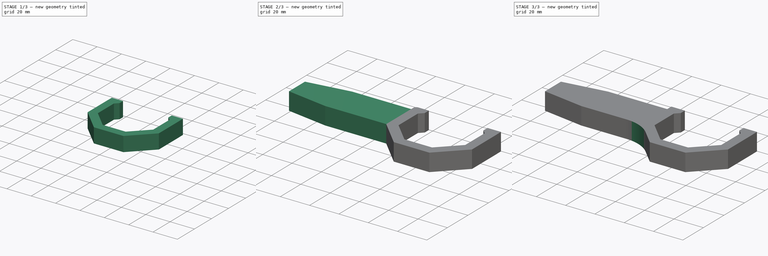
[diagram: build sequence overview — one tinted view per stage of 3, left to right]
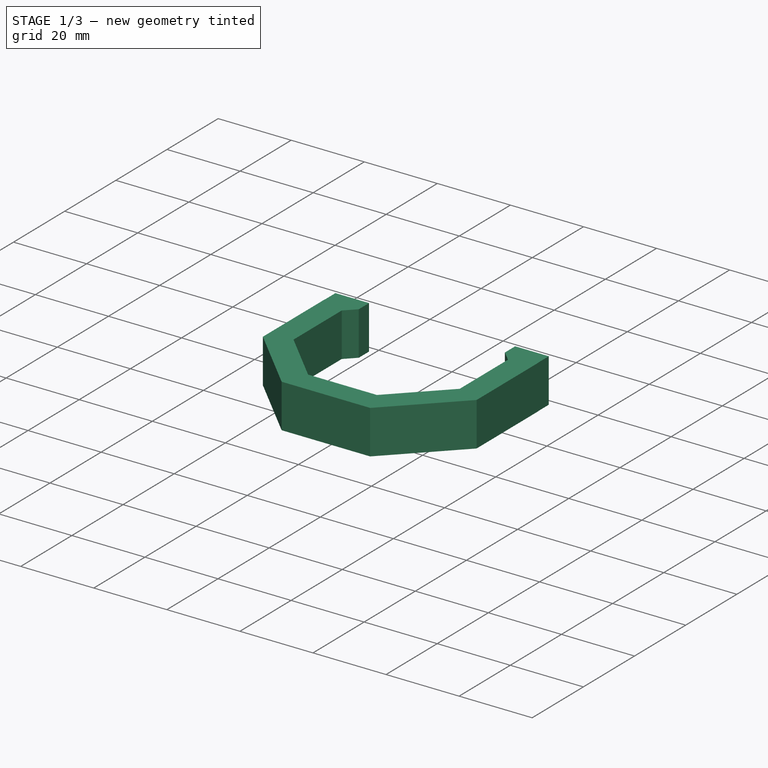
[diagram: stage 1 of 3 — iso view after this stage's code; geometry added in this stage tinted green]
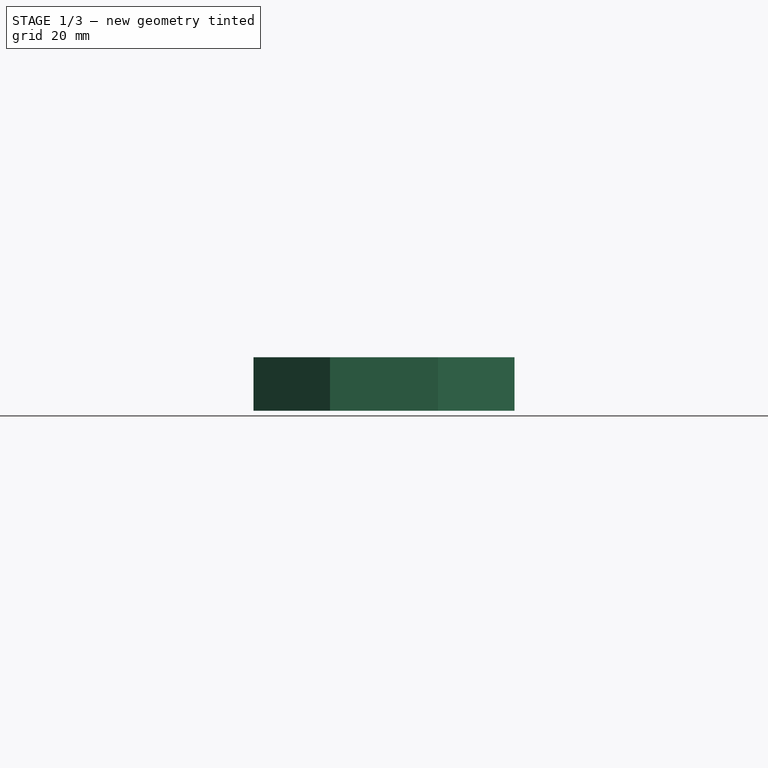
[diagram: stage 1 of 3 — front view after this stage's code; geometry added in this stage tinted green]
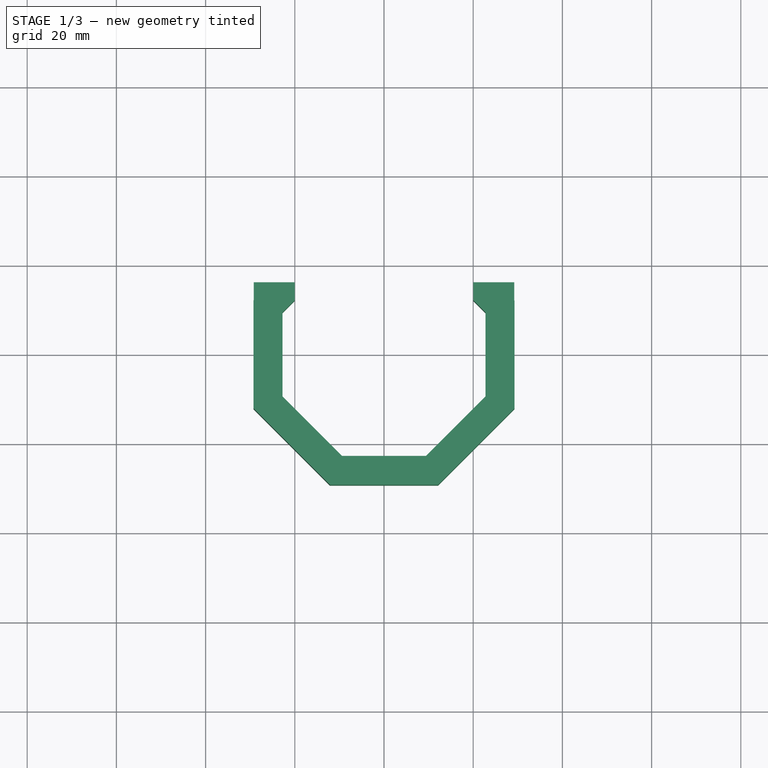
[diagram: stage 1 of 3 — top view after this stage's code; geometry added in this stage tinted green]
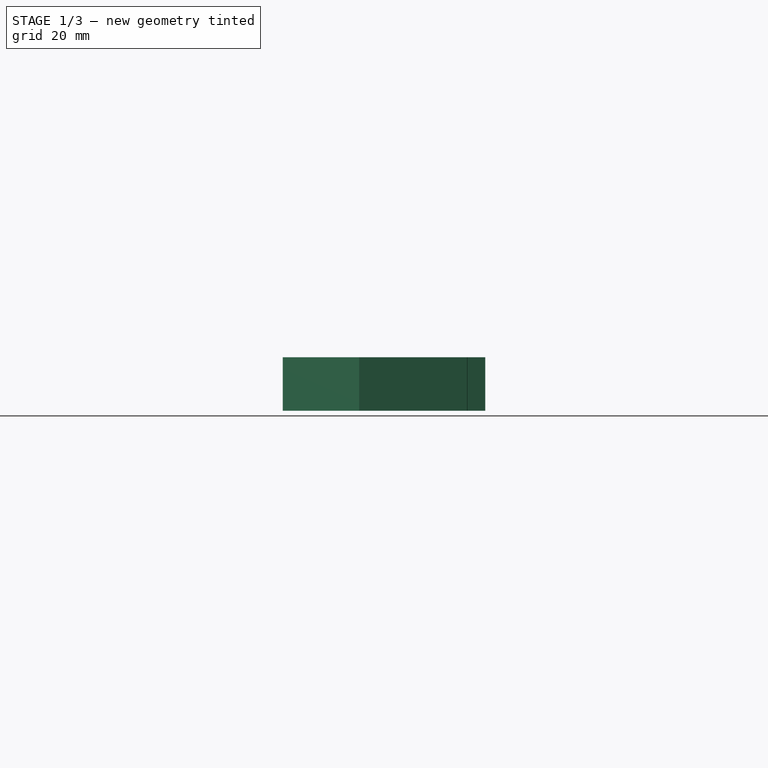
[diagram: stage 1 of 3 — right view after this stage's code; geometry added in this stage tinted green]
FCSTD DOCUMENT  (FreeCAD 1.0R39285 (Git))
Label: Ключ 34 угловой
License: All rights reserved
LicenseURL: https://en.wikipedia.org/wiki/All_rights_reserved
objects: PartDesign::Fillet×4, Sketcher::SketchObject×3, PartDesign::Pad×3, PartDesign::Thickness×1, PartDesign::Body×1
note: 31 computed .brp shape members not serialized (recipe doc carries the construction recipe); baked Part::Feature solids carry a one-line shape summary decoded from their .brp

FEATURE [Sketcher::SketchObject] Sketch
  ArcFitTolerance = 1e-06
  AttachmentSupport = -> [XY_Plane]
  FullyConstrained = true
  MakeInternals = false
  MapMode = 5
  sketch-geometry (12):
    g0: LineSegment StartX=-22.75 StartY=9.42336 StartZ=0 EndX=-22.75 EndY=-9.42336 EndZ=0
    g1: LineSegment StartX=-22.75 StartY=-9.42336 StartZ=0 EndX=-9.42336 EndY=-22.75 EndZ=0
    g2: LineSegment StartX=-9.42336 StartY=-22.75 StartZ=0 EndX=9.42336 EndY=-22.75 EndZ=0
    g3: LineSegment StartX=9.42336 StartY=-22.75 StartZ=0 EndX=22.75 EndY=-9.42336 EndZ=0
    g4: LineSegment StartX=22.75 StartY=-9.42336 StartZ=0 EndX=22.75 EndY=9.42336 EndZ=0
    g5: LineSegment [constr] StartX=22.75 StartY=9.42336 StartZ=0 EndX=9.42336 EndY=22.75 EndZ=0
    g6: LineSegment [constr] StartX=9.42336 StartY=22.75 StartZ=0 EndX=-9.42336 EndY=22.75 EndZ=0
    g7: LineSegment [constr] StartX=-9.42336 StartY=22.75 StartZ=0 EndX=-22.75 EndY=9.42336 EndZ=0
    g8: Circle [constr] CenterX=0 CenterY=0 CenterZ=0 NormalX=0 NormalY=0 NormalZ=1 AngleXU=0 Radius=24.6244
    g9: LineSegment StartX=-22.75 StartY=9.42336 StartZ=0 EndX=-20 EndY=12.1734 EndZ=0
    g10: LineSegment StartX=22.75 StartY=9.42336 StartZ=0 EndX=20 EndY=12.1734 EndZ=0
    g11: LineSegment StartX=-20 StartY=12.1734 StartZ=0 EndX=20 EndY=12.1734 EndZ=0
  constraints (28):
    c: Coincident(g0,g1)
    c: Coincident(g1,g2)
    c: Coincident(g2,g3)
    c: Coincident(g3,g4)
    c: Coincident(g4,g5)
    c: Coincident(g5,g6)
    c: Coincident(g6,g7)
    c: Coincident(g7,g0)
    c: Equal(g0, g1-g7) x7
    c: PointOnObject(g0,g8)
    c: PointOnObject(g1,g8)
    c: PointOnObject(g2,g8)
    c: PointOnObject(g3,g8)
    c: PointOnObject(g4,g8)
    c: PointOnObject(g5,g8)
    c: PointOnObject(g6,g8)
    c: PointOnObject(g7,g8)
    c: Coincident(g8,g-1)
    c: Horizontal(g6)
    c: Coincident(g9,g0)
    c: Coincident(g10,g4)
    c: Distance(g4,g0) = 45.5
    c: Coincident(g11,g9)
    c: Coincident(g11,g10)
    c: DistanceX(g11,g11) = 40
    c: PointOnObject(g9,g7)
    c: PointOnObject(g10,g5)
    c: Horizontal(g11)
FEATURE [PartDesign::Pad] Pad
  Direction = (0,0,1)
  Length = 12
  Length2 = 10
  Profile = -> Sketch
  ReferenceAxis = -> Sketch [N_Axis]
  Refine = true
  Suppressed = false
  Type = 0
FEATURE [PartDesign::Thickness] Thickness
  Base = -> Pad [Face9,Face7,Face10]
  BaseFeature = -> Pad
  Intersection = false
  Join = 1
  Mode = 0
  Refine = true
  SupportTransform = false
  Suppressed = false
  Value = 6.5
FEATURE [Sketcher::SketchObject] Sketch001
  ArcFitTolerance = 1e-06
  AttachmentSupport = -> [Thickness]
  ExternalGeometry = -> [Thickness]
  FullyConstrained = true
  MakeInternals = false
  MapMode = 5
  Placement = pos=(0,0,12) rot=(0,0,1;0rad)
  sketch-geometry (8):
    g0: LineSegment StartX=-29.1924 StartY=16.1734 StartZ=0 EndX=-29.1924 EndY=12.1734 EndZ=0
    g1: LineSegment StartX=-29.1924 StartY=12.1734 StartZ=0 EndX=-20 EndY=12.1734 EndZ=0
    g2: LineSegment StartX=-20 StartY=12.1734 StartZ=0 EndX=-20 EndY=16.1734 EndZ=0
    g3: LineSegment StartX=-20 StartY=16.1734 StartZ=0 EndX=-29.1924 EndY=16.1734 EndZ=0
    g4: LineSegment StartX=20 StartY=16.1734 StartZ=0 EndX=20 EndY=12.1734 EndZ=0
    g5: LineSegment StartX=20 StartY=12.1734 StartZ=0 EndX=29.1924 EndY=12.1734 EndZ=0
    g6: LineSegment StartX=29.1924 StartY=12.1734 StartZ=0 EndX=29.1924 EndY=16.1734 EndZ=0
    g7: LineSegment StartX=29.1924 StartY=16.1734 StartZ=0 EndX=20 EndY=16.1734 EndZ=0
  constraints (20):
    c: Coincident(g0,g1)
    c: Coincident(g1,g2)
    c: Coincident(g2,g3)
    c: Coincident(g3,g0)
    c: Vertical(g0)
    c: Vertical(g2)
    c: Horizontal(g3)
    c: Coincident(g4,g5)
    c: Coincident(g5,g6)
    c: Coincident(g6,g7)
    c: Coincident(g7,g4)
    c: Vertical(g4)
    c: Vertical(g6)
    c: Horizontal(g7)
    c: DistanceY(g4,g4) = 4
    c: Coincident(g4,g-4)
    c: Coincident(g1,g-3)
    c: Coincident(g0,g-3)
    c: Equal(g4,g2)
    c: Coincident(g5,g-4)
FEATURE [PartDesign::Pad] Pad001
  BaseFeature = -> Thickness
  Direction = (0,0,1)
  Length = 10
  Length2 = 10
  Profile = -> Sketch001
  ReferenceAxis = -> Sketch001 [N_Axis]
  Refine = true
  Reversed = true
  Suppressed = false
  Type = 3
  UpToFace = -> Thickness [Face8]
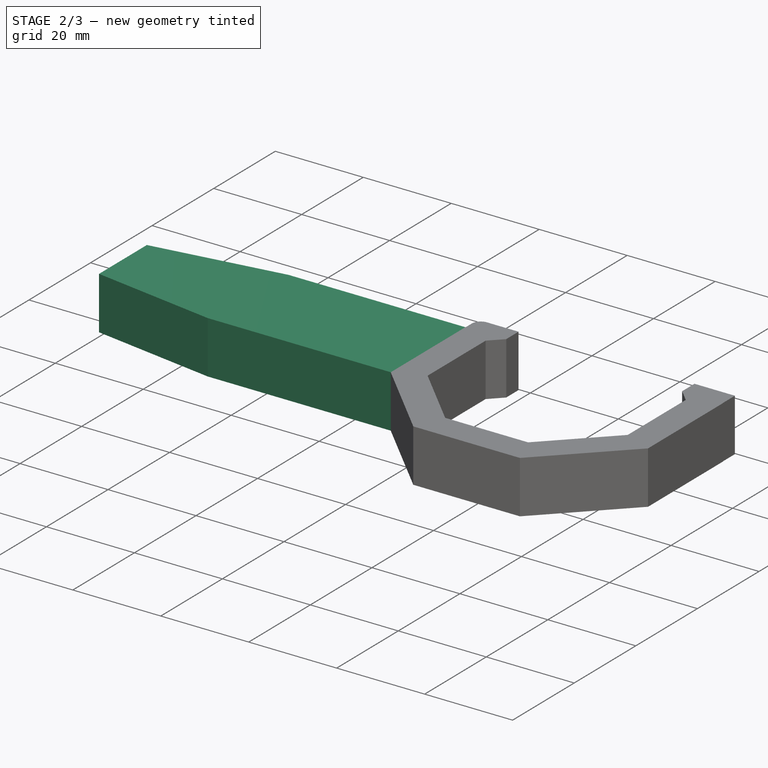
[diagram: stage 2 of 3 — iso view after this stage's code; geometry added in this stage tinted green]
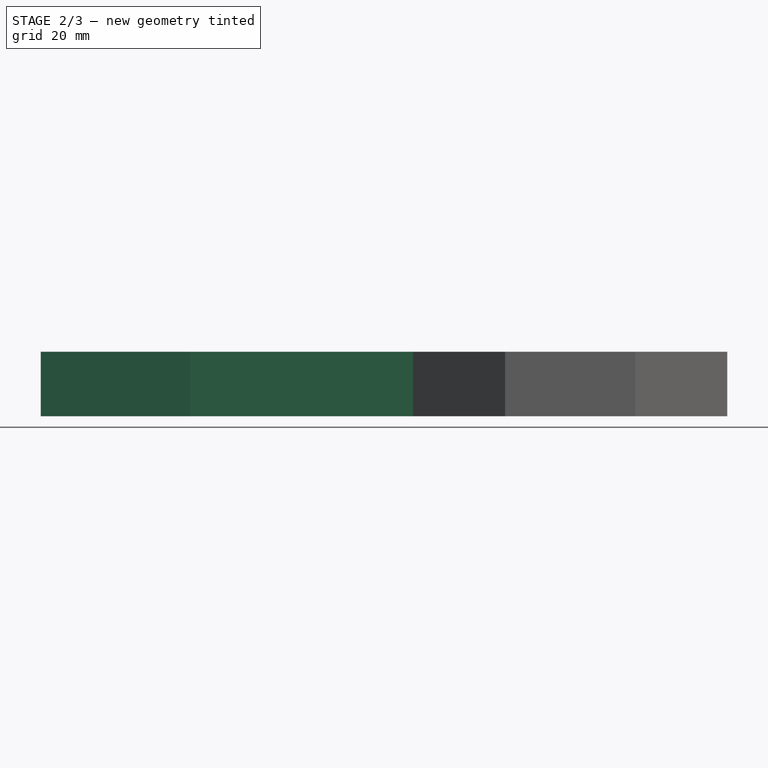
[diagram: stage 2 of 3 — front view after this stage's code; geometry added in this stage tinted green]
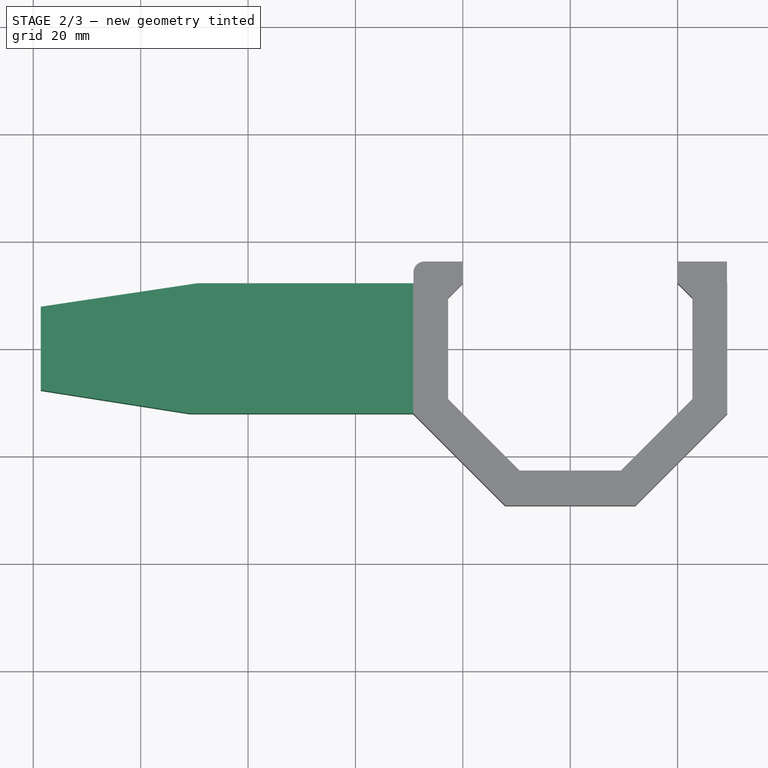
[diagram: stage 2 of 3 — top view after this stage's code; geometry added in this stage tinted green]
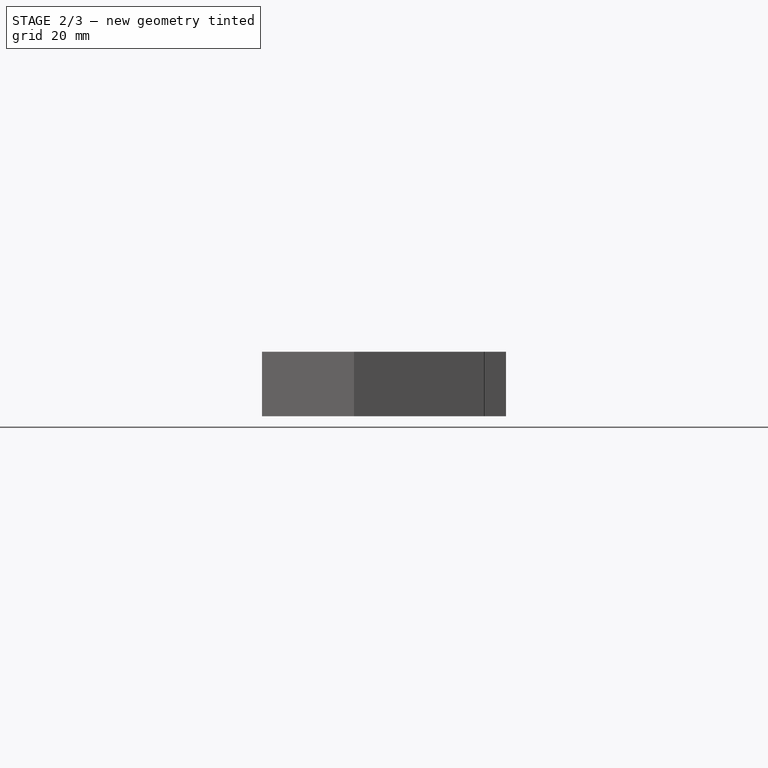
[diagram: stage 2 of 3 — right view after this stage's code; geometry added in this stage tinted green]
FEATURE [Sketcher::SketchObject] Sketch002
  ArcFitTolerance = 1e-06
  AttachmentSupport = -> [Pad001]
  ExternalGeometry = -> [Pad001]
  FullyConstrained = false
  MakeInternals = false
  MapMode = 5
  Placement = pos=(0,0,0) rot=(1,0,0;3.14159rad)
  sketch-geometry (6):
    g0: LineSegment StartX=-29.25 StartY=-12.1157 StartZ=0 EndX=-69.4905 EndY=-12.1157 EndZ=0
    g1: LineSegment StartX=-69.4905 StartY=-12.1157 StartZ=0 EndX=-98.6145 EndY=-7.76011 EndZ=0
    g2: LineSegment StartX=-98.6145 StartY=-7.76011 StartZ=0 EndX=-98.6145 EndY=7.76011 EndZ=0
    g3: LineSegment StartX=-98.6145 StartY=7.76011 StartZ=0 EndX=-70.8321 EndY=12.1157 EndZ=0
    g4: LineSegment StartX=-70.8321 StartY=12.1157 StartZ=0 EndX=-29.25 EndY=12.1157 EndZ=0
    g5: LineSegment StartX=-29.25 StartY=12.1157 StartZ=0 EndX=-29.25 EndY=-12.1157 EndZ=0
  constraints (11):
    c: Coincident(g-3,g0)
    c: Horizontal(g0)
    c: Coincident(g0,g1)
    c: Coincident(g1,g2)
    c: Coincident(g2,g3)
    c: Coincident(g3,g4)
    c: Coincident(g4,g-4)
    c: Coincident(g4,g5)
    c: Coincident(g5,g0)
    c: Symmetric(g1,g2,g-1)
    c: Horizontal(g4)
FEATURE [PartDesign::Pad] Pad002
  BaseFeature = -> Pad001
  Direction = (0,0,-1)
  Length = 10
  Length2 = 10
  Profile = -> Sketch002
  ReferenceAxis = -> Sketch002 [N_Axis]
  Refine = true
  Reversed = true
  Suppressed = false
  Type = 3
  UpToFace = -> Pad001 [Face22]
FEATURE [PartDesign::Fillet] Fillet003
  Base = -> Pad002 [Edge53]
  BaseFeature = -> Pad002
  Radius = 2
  Refine = true
  SupportTransform = false
  Suppressed = false
  UseAllEdges = false
FEATURE [PartDesign::Body] Body  label="Тело"
  AllowCompound = false
  Group = -> [Sketch,Pad,Thickness,Sketch001,Pad001,Sketch002,Pad002,Fillet,Fillet001,Fillet002,Fillet003]
  Origin = -> Origin
  Tip = -> Fillet003
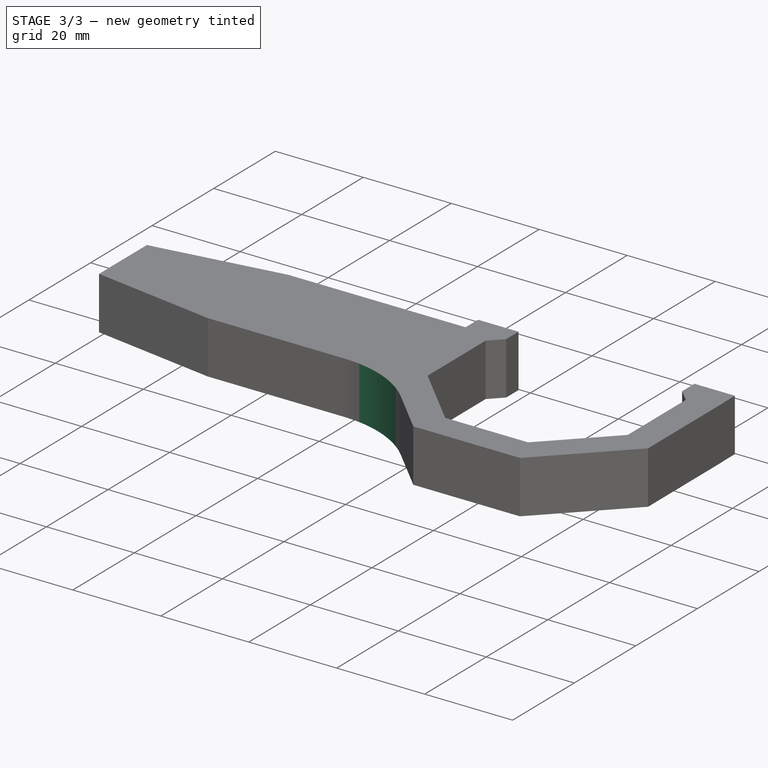
[diagram: stage 3 of 3 — iso view after this stage's code; geometry added in this stage tinted green]
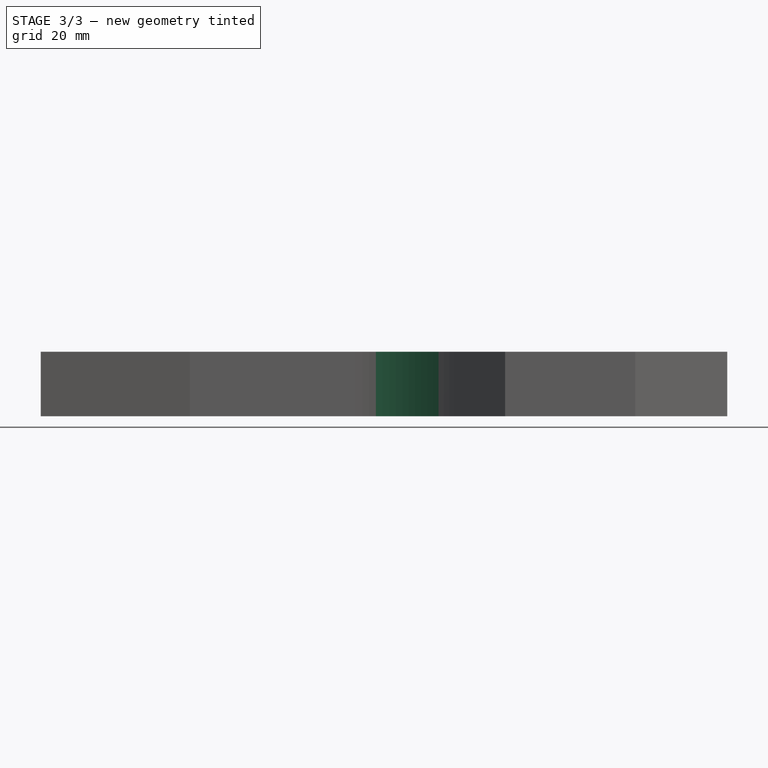
[diagram: stage 3 of 3 — front view after this stage's code; geometry added in this stage tinted green]
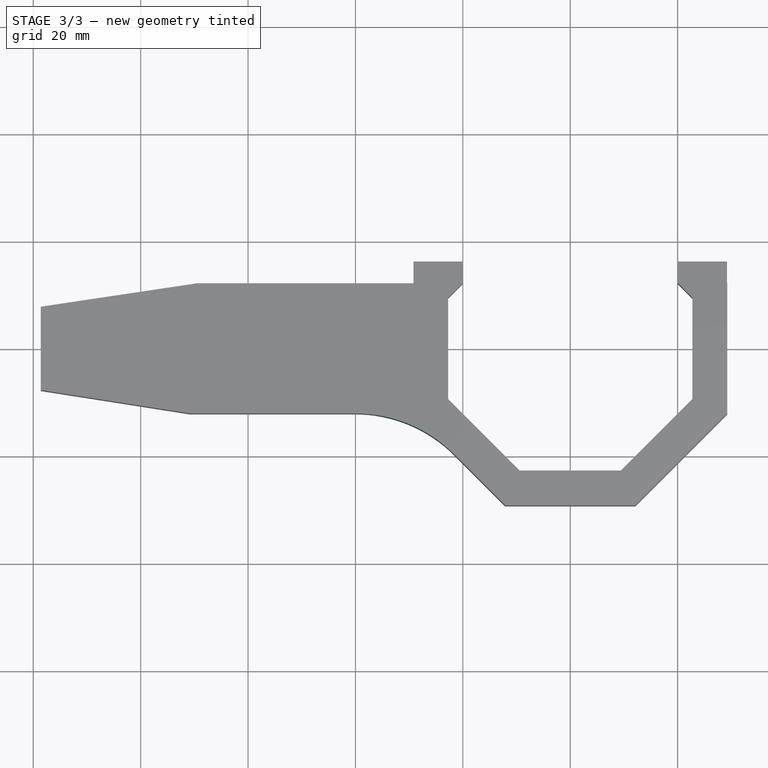
[diagram: stage 3 of 3 — top view after this stage's code; geometry added in this stage tinted green]
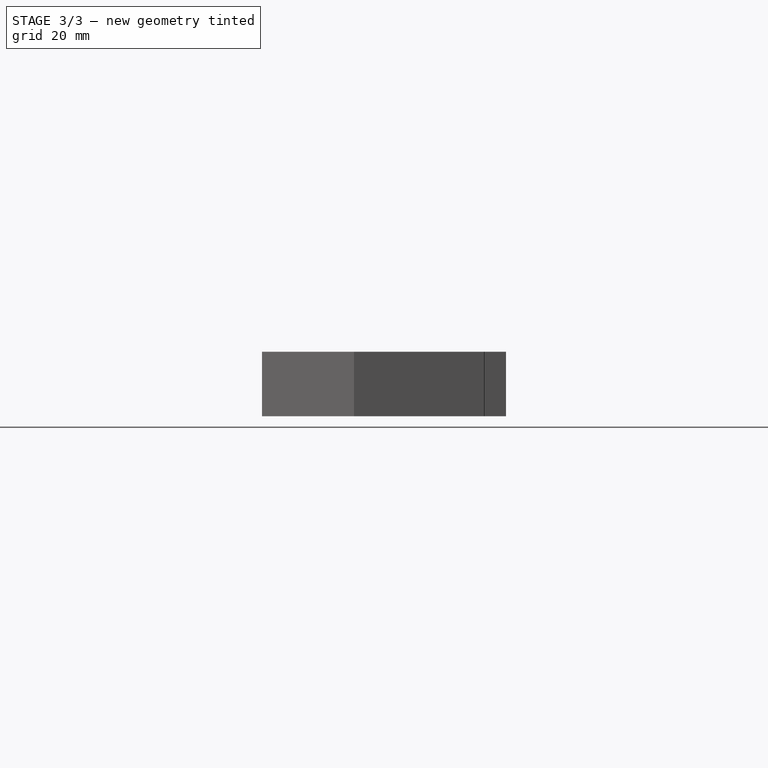
[diagram: stage 3 of 3 — right view after this stage's code; geometry added in this stage tinted green]
FEATURE [PartDesign::Fillet] Fillet
  Base = -> Pad002 [Edge42]
  BaseFeature = -> Pad002
  Radius = 26
  Refine = true
  SupportTransform = false
  Suppressed = false
  UseAllEdges = false
FEATURE [PartDesign::Fillet] Fillet001
  Base = -> Fillet [Edge57,Edge59]
  BaseFeature = -> Fillet
  Radius = 4
  Refine = true
  SupportTransform = false
  Suppressed = false
  UseAllEdges = false
FEATURE [PartDesign::Fillet] Fillet002
  Base = -> Fillet001 [Edge29]
  BaseFeature = -> Fillet001
  Radius = 131
  Refine = true
  SupportTransform = false
  Suppressed = false
  UseAllEdges = false
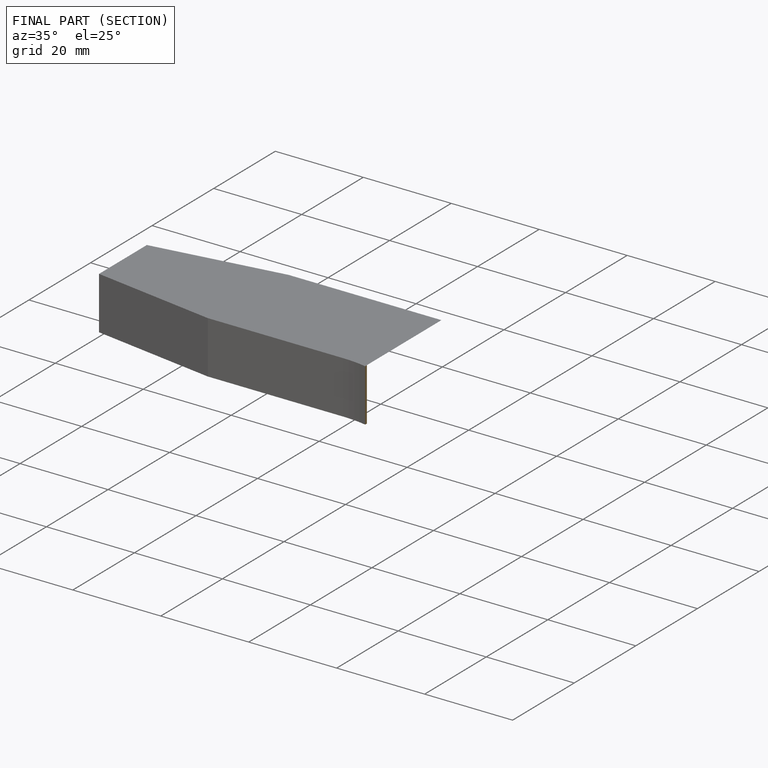
[diagram: finished part — half-section view (interior)]
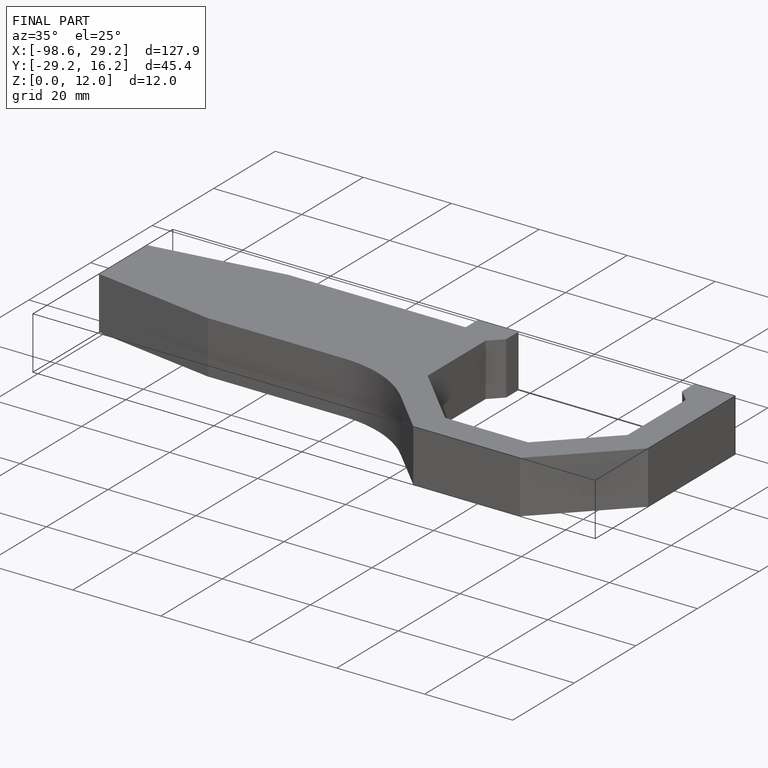
[diagram: finished part — iso view with bounding-box wireframe]
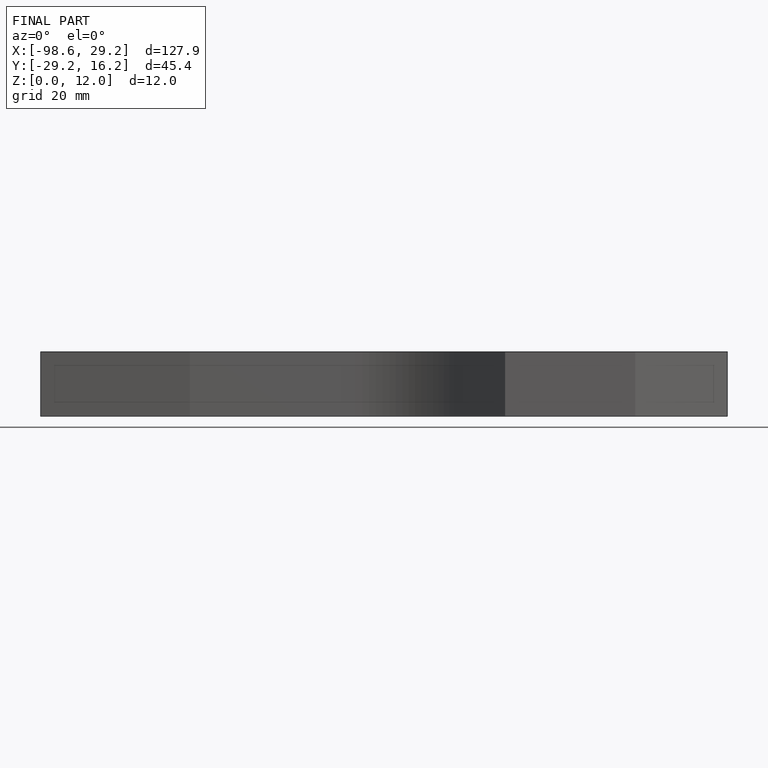
[diagram: finished part — front view with bounding-box wireframe]
